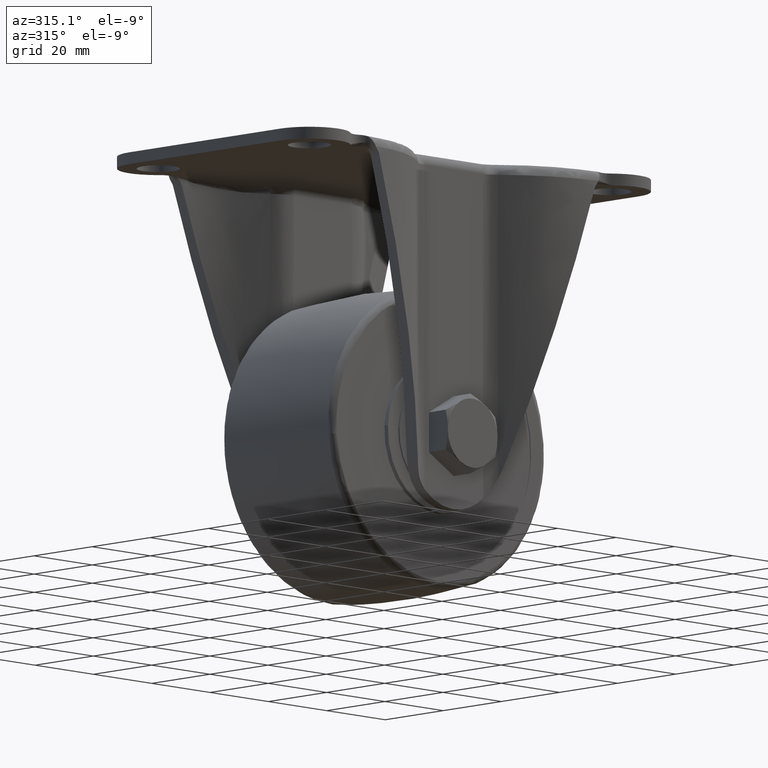
[diagram: clean part render]
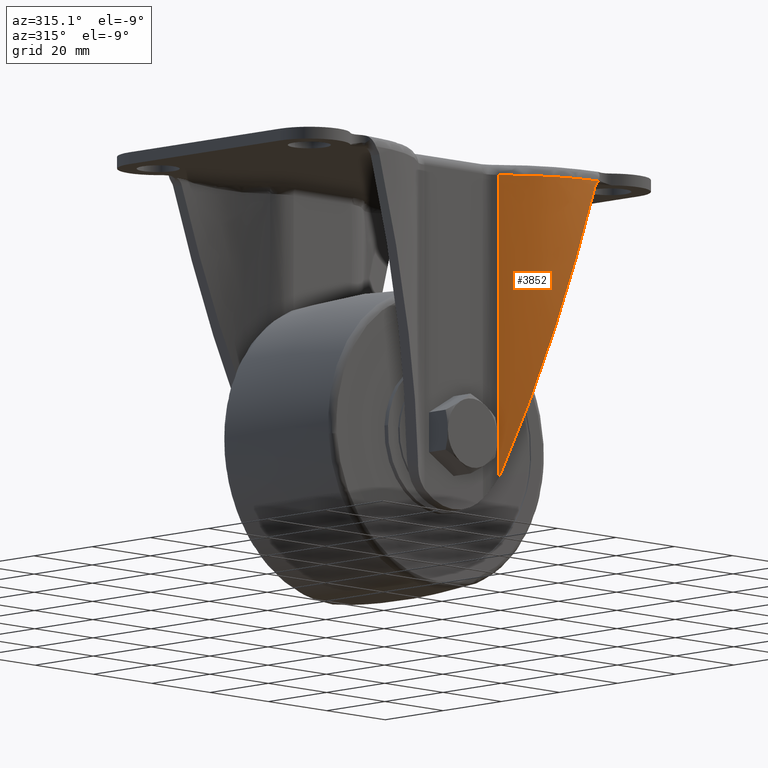
[diagram: same view with one face highlighted and labeled with its STEP entity id]
A machine part, auxiliary view. The second image highlights one B-rep face of the part: STEP entity #3852.
In plain terms, the highlighted face is a freeform B-spline surface patch.
Its self-contained STEP definition (entity closure, byte-faithful):
#3546=CARTESIAN_POINT('',(36.930108218803547,-35.443599907763200,-4.644509719684301));
#3547=VERTEX_POINT('',#3546);
#3553=CARTESIAN_POINT('',(14.298687000000040,-26.007770663167300,-76.032942000000006));
#3554=VERTEX_POINT('',#3553);
#3555=CARTESIAN_POINT('',(14.298687000000021,-26.007770663167300,-76.032942000000020));
#3556=CARTESIAN_POINT('',(23.947367755029941,-34.723983033404259,-45.597195786123677));
#3557=CARTESIAN_POINT('',(36.930108218803149,-35.443599907763200,-4.644509719685429));
#3565=(BOUNDED_CURVE()B_SPLINE_CURVE(2,(#3555,#3556,#3557),.UNSPECIFIED.,.F.,.U.)CURVE()GEOMETRIC_REPRESENTATION_ITEM()QUASI_UNIFORM_CURVE()RATIONAL_B_SPLINE_CURVE((1.0,0.942872136315912,1.0))REPRESENTATION_ITEM(''));
#3566=EDGE_CURVE('',#3554,#3547,#3565,.T.);
#3631=CARTESIAN_POINT('',(13.742971939924320,-25.495297672985849,-77.510885095288302));
#3632=VERTEX_POINT('',#3631);
#3633=CARTESIAN_POINT('',(14.298687000000040,-26.007770663167321,-76.032942000000020));
#3634=CARTESIAN_POINT('',(14.137225039765219,-25.861912719387011,-76.542256870500267));
#3635=CARTESIAN_POINT('',(13.951234999640050,-25.691351395678449,-77.034723260811063));
#3636=CARTESIAN_POINT('',(13.742971939924310,-25.495297672985860,-77.510885095288288));
#3637=QUASI_UNIFORM_CURVE('',3,(#3633,#3634,#3635,#3636),.UNSPECIFIED.,.F.,.U.);
#3638=EDGE_CURVE('',#3554,#3632,#3637,.T.);
#3748=CARTESIAN_POINT('',(39.114222603160357,-35.499704377283287,-79.378541905376437));
#3749=CARTESIAN_POINT('',(39.114222603160357,-35.499704377283287,-0.890264461422873));
#3750=CARTESIAN_POINT('',(23.662741268577761,-35.561639504812867,-79.378541905376437));
#3751=CARTESIAN_POINT('',(23.662741268577761,-35.561639504812867,-0.890264461422873));
#3752=CARTESIAN_POINT('',(12.798828458878173,-24.574032401525049,-79.378541905376437));
#3753=CARTESIAN_POINT('',(12.798828458878173,-24.574032401525049,-0.890264461422873));
#3761=(BOUNDED_SURFACE()B_SPLINE_SURFACE(1,2,((#3748,#3750,#3752),(#3749,#3751,#3753)),.UNSPECIFIED.,.F.,.F.,.U.)B_SPLINE_SURFACE_WITH_KNOTS((2,2),(3,3),(0.0,78.488277443953564),(0.0,29.649244136297849),.UNSPECIFIED.)GEOMETRIC_REPRESENTATION_ITEM()RATIONAL_B_SPLINE_SURFACE(((1.0,0.918062766329137,0.991437447534404),(1.0,0.918062766329137,0.991437447534404)))REPRESENTATION_ITEM('')SURFACE());
#3762=CARTESIAN_POINT('',(37.456172725094348,-35.468984275723599,-3.726271962956090));
#3763=VERTEX_POINT('',#3762);
#3764=CARTESIAN_POINT('',(36.930108218803547,-35.443599907763200,-4.644509719684280));
#3765=CARTESIAN_POINT('',(36.984301067408957,-35.446603748780817,-4.473564092127743));
#3766=CARTESIAN_POINT('',(37.055687466092792,-35.450450767782392,-4.311497460153729));
#3767=CARTESIAN_POINT('',(37.187538145116939,-35.456991023037723,-4.081178147656591));
#3768=CARTESIAN_POINT('',(37.235652665333177,-35.459299538836092,-4.006553585232400));
#3769=CARTESIAN_POINT('',(37.314269490416279,-35.462889502905512,-3.897940172173414));
#3770=CARTESIAN_POINT('',(37.341559083503391,-35.464107365985143,-3.862297174982010));
#3771=CARTESIAN_POINT('',(37.397633734067171,-35.466543353389149,-3.792982170692223));
#3772=CARTESIAN_POINT('',(37.426497127893910,-35.467765116324017,-3.759197901106085));
#3773=CARTESIAN_POINT('',(37.456172725094319,-35.468984275723599,-3.726271962956103));
#3774=B_SPLINE_CURVE_WITH_KNOTS('',3,(#3764,#3765,#3766,#3767,#3768,#3769,#3770,#3771,#3772,#3773),.UNSPECIFIED.,.F.,.U.,(4,2,2,2,4),(0.0,0.500000000000001,0.750000000000001,0.875000000000000,1.0),.UNSPECIFIED.);
#3775=EDGE_CURVE('',#3547,#3763,#3774,.T.);
#3776=ORIENTED_EDGE('',*,*,#3775,.T.);
#3777=CARTESIAN_POINT('',(38.142475761712703,-35.489472720287253,-2.804612691763200));
#3778=VERTEX_POINT('',#3777);
#3779=CARTESIAN_POINT('',(37.456172725094348,-35.468984275723599,-3.726271962956090));
#3780=CARTESIAN_POINT('',(37.506925760706658,-35.470920736019522,-3.668723038981126));
#3781=CARTESIAN_POINT('',(37.608354078171722,-35.474790689950019,-3.553713356106337));
#3782=CARTESIAN_POINT('',(37.752205971699013,-35.479517258554601,-3.374205263064591));
#3783=CARTESIAN_POINT('',(37.889552156091092,-35.483533812809164,-3.189762227807432));
#3784=CARTESIAN_POINT('',(38.020472237586119,-35.486884610722953,-3.000266228102083));
#3785=CARTESIAN_POINT('',(38.101771756962613,-35.488609249951011,-2.869888531371297));
#3786=CARTESIAN_POINT('',(38.142475761712703,-35.489472720287253,-2.804612691763200));
#3787=B_SPLINE_CURVE_WITH_KNOTS('',3,(#3779,#3780,#3781,#3782,#3783,#3784,#3785,#3786),.UNSPECIFIED.,.F.,.U.,(4,1,1,1,1,4),(0.0,0.200051915776283,0.399797351587906,0.599516892858997,0.799491234137473,1.0),.UNSPECIFIED.);
#3788=EDGE_CURVE('',#3763,#3778,#3787,.T.);
#3789=ORIENTED_EDGE('',*,*,#3788,.T.);
#3790=CARTESIAN_POINT('',(13.742971939924320,-25.495297672985849,-2.900000000000000));
#3791=VERTEX_POINT('',#3790);
#3792=CARTESIAN_POINT('',(38.142475761712703,-35.489472720287253,-2.804612691763200));
#3793=CARTESIAN_POINT('',(37.889985381783220,-35.484194743766757,-2.805968962591337));
#3794=CARTESIAN_POINT('',(37.378257555252738,-35.466872831296747,-2.808699486132529));
#3795=CARTESIAN_POINT('',(36.610753012282352,-35.426009043246182,-2.812754199352126));
#3796=CARTESIAN_POINT('',(35.843083022563142,-35.368606710308129,-2.816764825584447));
#3797=CARTESIAN_POINT('',(35.085228238616423,-35.296141534873691,-2.820681323237828));
#3798=CARTESIAN_POINT('',(34.337462794134588,-35.209062874488907,-2.824503397271056));
#3799=CARTESIAN_POINT('',(33.600039302301639,-35.107952891159620,-2.828231125905465));
#3800=CARTESIAN_POINT('',(32.873189406897801,-34.993356106712142,-2.831864489012616));
#3801=CARTESIAN_POINT('',(32.157124343249293,-34.865823504167523,-2.835403492377800));
#3802=CARTESIAN_POINT('',(31.452035508450621,-34.725900145828497,-2.838848134966623));
#3803=CARTESIAN_POINT('',(30.758095039071812,-34.574127713973773,-2.842198417547460));
#3804=CARTESIAN_POINT('',(30.075456394970260,-34.411043164006287,-2.845454340422674));
#3805=CARTESIAN_POINT('',(29.404254947804471,-34.237178443065297,-2.848615904023133));
#3806=CARTESIAN_POINT('',(28.744608572938631,-34.053059969005837,-2.851683108759623));
#3807=CARTESIAN_POINT('',(28.096618243486461,-33.859208212358617,-2.854655955057074));
#3808=CARTESIAN_POINT('',(27.460368625310299,-33.656137290099572,-2.857534443350081));
#3809=CARTESIAN_POINT('',(26.835928671855729,-33.444354594194792,-2.860318574084589));
#3810=CARTESIAN_POINT('',(26.223352217765040,-33.224360447828047,-2.863008347720813));
#3811=CARTESIAN_POINT('',(25.622678570275820,-32.996647790103353,-2.865603764731066));
#3812=CARTESIAN_POINT('',(25.033933097470900,-32.761701887922719,-2.868104825605202));
#3813=CARTESIAN_POINT('',(24.457127812507029,-32.520000074275842,-2.870511530849989));
#3814=CARTESIAN_POINT('',(23.892261953005772,-32.272011512024513,-2.872823880989917));
#3815=CARTESIAN_POINT('',(23.339322554848600,-32.018196982298448,-2.875041876572273));
#3816=CARTESIAN_POINT('',(22.798285019672068,-31.759008696604290,-2.877165518166556));
#3817=CARTESIAN_POINT('',(22.269113675412761,-31.494890131752200,-2.879194806367272));
#3818=CARTESIAN_POINT('',(21.751762329303560,-31.226275886702830,-2.881129741796354));
#3819=CARTESIAN_POINT('',(21.246174812772772,-30.953591560442970,-2.882970325106128));
#3820=CARTESIAN_POINT('',(20.752285517746142,-30.677253649999670,-2.884716556981730));
#3821=CARTESIAN_POINT('',(20.270019923897792,-30.397669467712149,-2.886368438143753));
#3822=CARTESIAN_POINT('',(19.799295116444451,-30.115237076883449,-2.887925969351951));
#3823=CARTESIAN_POINT('',(19.340020294106719,-29.830345244958671,-2.889389151408762));
#3824=CARTESIAN_POINT('',(18.892097266954501,-29.543373413331061,-2.890757985163590));
#3825=CARTESIAN_POINT('',(18.455420943702350,-29.254691683093320,-2.892032471516888));
#3826=CARTESIAN_POINT('',(18.029879808756132,-28.964660815321910,-2.893212611418625));
#3827=CARTESIAN_POINT('',(17.615356386806059,-28.673632247197769,-2.894298405906848));
#3828=CARTESIAN_POINT('',(17.211727702053579,-28.381948115447070,-2.895289855980968));
#3829=CARTESIAN_POINT('',(16.818865705499320,-28.089941314392409,-2.896186963098072));
#3830=CARTESIAN_POINT('',(16.436637766318601,-27.797935485720568,-2.896989727389927));
#3831=CARTESIAN_POINT('',(16.064906877701539,-27.506245310519809,-2.897698154183272));
#3832=CARTESIAN_POINT('',(15.703532847381259,-27.215175753483859,-2.898312230341341));
#3833=CARTESIAN_POINT('',(15.352369858685639,-26.925025159983409,-2.898832010220616));
#3834=CARTESIAN_POINT('',(15.011277154083000,-26.636074410342310,-2.899257303717882));
#3835=CARTESIAN_POINT('',(14.680082053307780,-26.348626703272451,-2.899588808038199));
#3836=CARTESIAN_POINT('',(14.358715769326309,-26.062863778392678,-2.899824004067285));
#3837=CARTESIAN_POINT('',(14.046722899947630,-25.779367453362180,-2.899972027404394));
#3838=CARTESIAN_POINT('',(13.843533061398141,-25.589343057037549,-2.899990739270142));
#3839=CARTESIAN_POINT('',(13.742971939924320,-25.495297672985849,-2.900000000000000));
#3840=B_SPLINE_CURVE_WITH_KNOTS('',3,(#3792,#3793,#3794,#3795,#3796,#3797,#3798,#3799,#3800,#3801,#3802,#3803,#3804,#3805,#3806,#3807,#3808,#3809,#3810,#3811,#3812,#3813,#3814,#3815,#3816,#3817,#3818,#3819,#3820,#3821,#3822,#3823,#3824,#3825,#3826,#3827,#3828,#3829,#3830,#3831,#3832,#3833,#3834,#3835,#3836,#3837,#3838,#3839),.UNSPECIFIED.,.F.,.U.,(4,1,1,1,1,1,1,1,1,1,1,1,1,1,1,1,1,1,1,1,1,1,1,1,1,1,1,1,1,1,1,1,1,1,1,1,1,1,1,1,1,1,1,1,1,4),(0.029661948223939,0.056924580733604,0.084928477168025,0.112626777299275,0.140019480875969,0.167106587654760,0.193888097400529,0.220364009886574,0.246534324894814,0.272399042216000,0.297958161649944,0.323211683005772,0.348159606102159,0.372801930767622,0.397138656840800,0.421169784170759,0.444895312617330,0.468315242051447,0.491429572355527,0.514238303423862,0.536741435163053,0.558938967492446,0.580830900344635,0.602417233665971,0.623697967417121,0.644673101573664,0.665342636126739,0.685706571083723,0.705764906468985,0.725517642324672,0.744964778711589,0.764106315710112,0.782942253421206,0.801472591967509,0.819697331494517,0.837616472171862,0.855230014194707,0.872537957785259,0.889540303194428,0.906237050703619,0.922628200626712,0.938713753312218,0.954493709145645,0.969968068552101,0.985136831999156,1.000000000000000),.UNSPECIFIED.);
#3841=EDGE_CURVE('',#3778,#3791,#3840,.T.);
#3842=ORIENTED_EDGE('',*,*,#3841,.T.);
#3843=CARTESIAN_POINT('',(13.742971939924320,-25.495297672985849,-77.510885095288302));
#3844=CARTESIAN_POINT('',(13.742971939924320,-25.495297672985849,-2.900000000000000));
#3845=QUASI_UNIFORM_CURVE('',1,(#3843,#3844),.UNSPECIFIED.,.F.,.U.);
#3846=EDGE_CURVE('',#3632,#3791,#3845,.T.);
#3847=ORIENTED_EDGE('',*,*,#3846,.F.);
#3848=ORIENTED_EDGE('',*,*,#3638,.F.);
#3849=ORIENTED_EDGE('',*,*,#3566,.T.);
#3850=EDGE_LOOP('',(#3776,#3789,#3842,#3847,#3848,#3849));
#3851=FACE_OUTER_BOUND('',#3850,.T.);
#3852=ADVANCED_FACE('',(#3851),#3761,.T.);